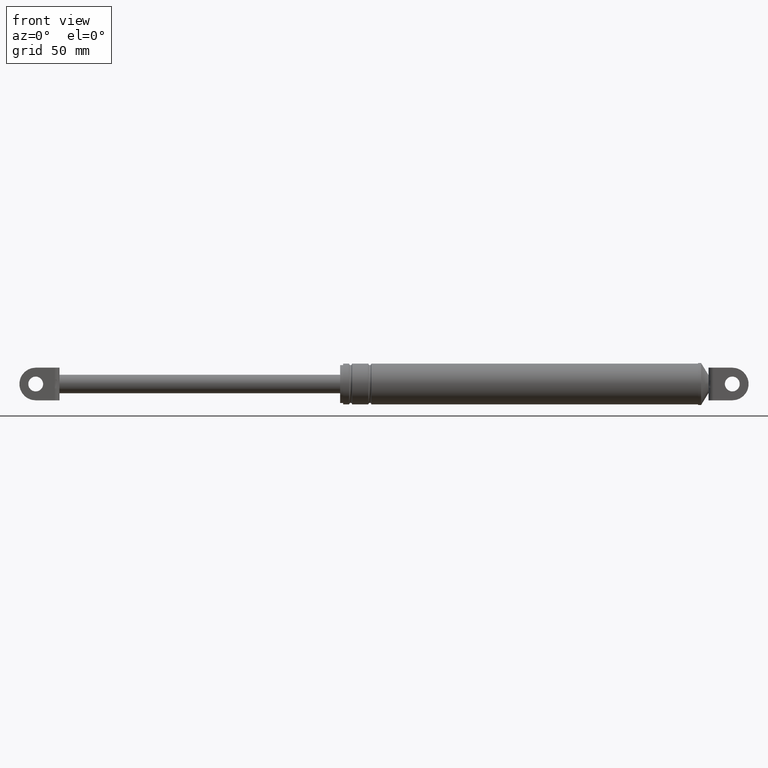
[diagram: clean part render]
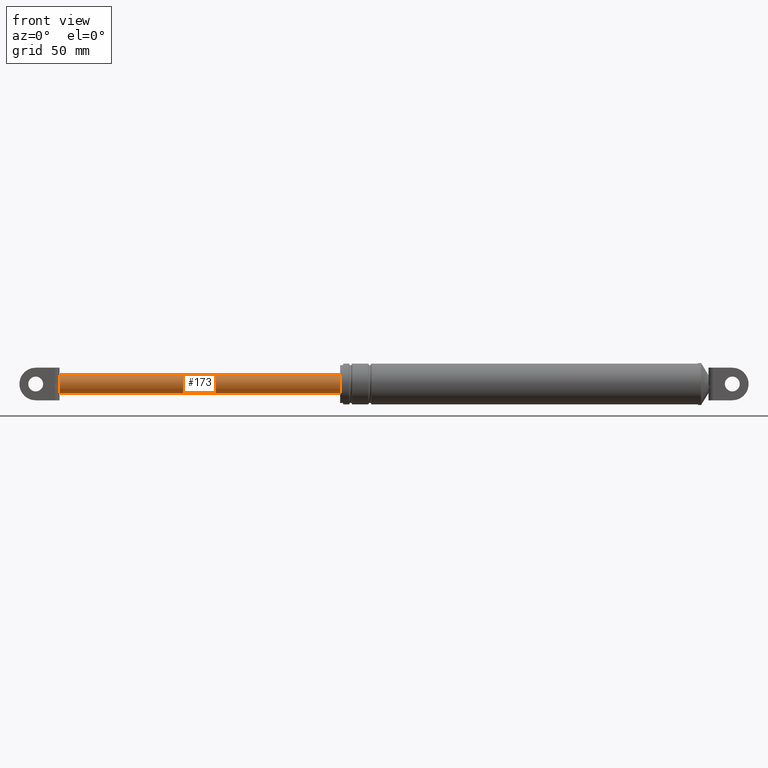
[diagram: same view with one face highlighted and labeled with its STEP entity id]
A machine part, front view. The second image highlights one B-rep face of the part: STEP entity #173.
In plain terms, the highlighted cylindrical surface (edge-blend (fillet) strip) has radius 6.25 mm, axis along (1, 0, 0).
Its self-contained STEP definition (entity closure, byte-faithful):
#173=ADVANCED_FACE('',(#797),#796,.T.);
#796=CYLINDRICAL_SURFACE('',#1384,6.25000000000E+000);
#797=FACE_OUTER_BOUND('',#1385,.T.);
#1381=CARTESIAN_POINT('',(0.00000000000E+000,0.00000000000E+000,1.77640306030E+002));
#1382=DIRECTION('',(1.00000000000E+000,-0.00000000000E+000,-0.00000000000E+000));
#1383=DIRECTION('',(-0.00000000000E+000,-0.00000000000E+000,-1.00000000000E+000));
#1384=AXIS2_PLACEMENT_3D('',#1381,#1382,#1383);
#1385=EDGE_LOOP('',(#1694,#1695,#1696,#1697,#1698,#1699));
#1694=ORIENTED_EDGE('',*,*,#1832,.F.);
#1695=ORIENTED_EDGE('',*,*,#1811,.F.);
#1696=ORIENTED_EDGE('',*,*,#1842,.F.);
#1697=ORIENTED_EDGE('',*,*,#1860,.T.);
#1698=ORIENTED_EDGE('',*,*,#1852,.T.);
#1699=ORIENTED_EDGE('',*,*,#1861,.F.);
#1811=EDGE_CURVE('',#2542,#2549,#2550,.T.);
#1832=EDGE_CURVE('',#2549,#2691,#2692,.T.);
#1842=EDGE_CURVE('',#2752,#2542,#2759,.T.);
#1852=EDGE_CURVE('',#2822,#2823,#2824,.T.);
#1860=EDGE_CURVE('',#2752,#2822,#2874,.T.);
#1861=EDGE_CURVE('',#2691,#2823,#2880,.T.);
#2542=VERTEX_POINT('',#3336);
#2549=VERTEX_POINT('',#3341);
#2550=CIRCLE('',#3345,6.25000000000E+000);
#2691=VERTEX_POINT('',#3438);
#2692=CIRCLE('',#3442,6.25000000000E+000);
#2752=VERTEX_POINT('',#3477);
#2759=CIRCLE('',#3485,6.25000000000E+000);
#2822=VERTEX_POINT('',#3517);
#2823=VERTEX_POINT('',#3518);
#2824=CIRCLE('',#3522,6.25000000000E+000);
#2874=(BOUNDED_CURVE() B_SPLINE_CURVE(1,(#3548,#3549),.UNSPECIFIED.,.F.,.F.) B_SPLINE_CURVE_WITH_KNOTS((2,2),(4.78468900547E-002,9.52153110211E-001),.UNSPECIFIED.) CURVE() GEOMETRIC_REPRESENTATION_ITEM() RATIONAL_B_SPLINE_CURVE((1.00000000000E+000,1.00000000000E+000)) REPRESENTATION_ITEM('') );
#2880=(BOUNDED_CURVE() B_SPLINE_CURVE(1,(#3550,#3551),.UNSPECIFIED.,.F.,.F.) B_SPLINE_CURVE_WITH_KNOTS((2,2),(4.78468899522E-002,9.52153110048E-001),.UNSPECIFIED.) CURVE() GEOMETRIC_REPRESENTATION_ITEM() RATIONAL_B_SPLINE_CURVE((7.50000000000E-001,7.50000000000E-001)) REPRESENTATION_ITEM('') );
#3336=CARTESIAN_POINT('',(-8.57424023629E+000,-5.49999700000E+000,1.74671714950E+002));
#3341=CARTESIAN_POINT('',(-8.57424023629E+000,-5.49999700000E+000,1.80608897110E+002));
#3342=CARTESIAN_POINT('',(-8.57424023629E+000,0.00000000000E+000,1.77640306030E+002));
#3343=DIRECTION('',(-1.00000000000E+000,0.00000000000E+000,0.00000000000E+000));
#3344=DIRECTION('',(-0.00000000000E+000,-0.00000000000E+000,-1.00000000000E+000));
#3345=AXIS2_PLACEMENT_3D('',#3342,#3343,#3344);
#3438=CARTESIAN_POINT('',(-8.57424023629E+000,7.89135292578E-007,1.83890306030E+002));
#3439=CARTESIAN_POINT('',(-8.57424023629E+000,0.00000000000E+000,1.77640306030E+002));
#3440=DIRECTION('',(-1.00000000000E+000,0.00000000000E+000,0.00000000000E+000));
#3441=DIRECTION('',(-0.00000000000E+000,-0.00000000000E+000,-1.00000000000E+000));
#3442=AXIS2_PLACEMENT_3D('',#3439,#3440,#3441);
#3477=CARTESIAN_POINT('',(-8.57424023629E+000,-4.27273507103E-012,1.71390306030E+002));
#3482=CARTESIAN_POINT('',(-8.57424023629E+000,0.00000000000E+000,1.77640306030E+002));
#3483=DIRECTION('',(-1.00000000000E+000,0.00000000000E+000,0.00000000000E+000));
#3484=DIRECTION('',(-0.00000000000E+000,8.79999520000E-001,-4.74974572793E-001));
#3485=AXIS2_PLACEMENT_3D('',#3482,#3483,#3484);
#3517=CARTESIAN_POINT('',(1.80425759764E+002,0.00000000000E+000,1.71390306030E+002));
#3518=CARTESIAN_POINT('',(1.80425759764E+002,0.00000000000E+000,1.83890306030E+002));
#3519=CARTESIAN_POINT('',(1.80425759764E+002,0.00000000000E+000,1.77640306030E+002));
#3520=DIRECTION('',(-1.00000000000E+000,0.00000000000E+000,0.00000000000E+000));
#3521=DIRECTION('',(0.00000000000E+000,-1.22460635382E-016,1.00000000000E+000));
#3522=AXIS2_PLACEMENT_3D('',#3519,#3520,#3521);
#3548=CARTESIAN_POINT('',(-8.57424021486E+000,0.00000000000E+000,1.71390306030E+002));
#3549=CARTESIAN_POINT('',(1.80425759798E+002,0.00000000000E+000,1.71390306030E+002));
#3550=CARTESIAN_POINT('',(-8.57424023629E+000,0.00000000000E+000,1.83890306030E+002));
#3551=CARTESIAN_POINT('',(1.80425759764E+002,0.00000000000E+000,1.83890306030E+002));